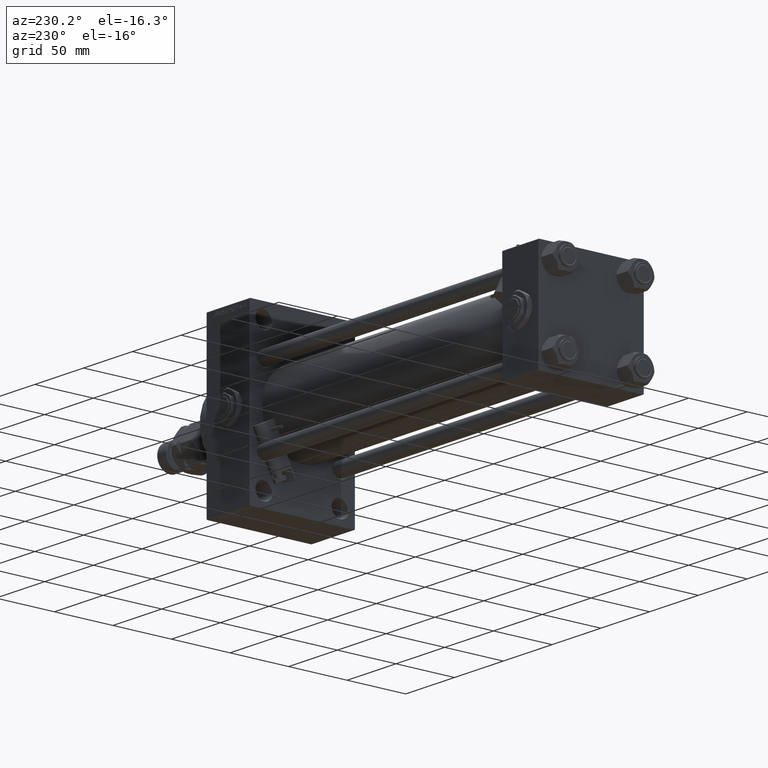
[diagram: clean part render]
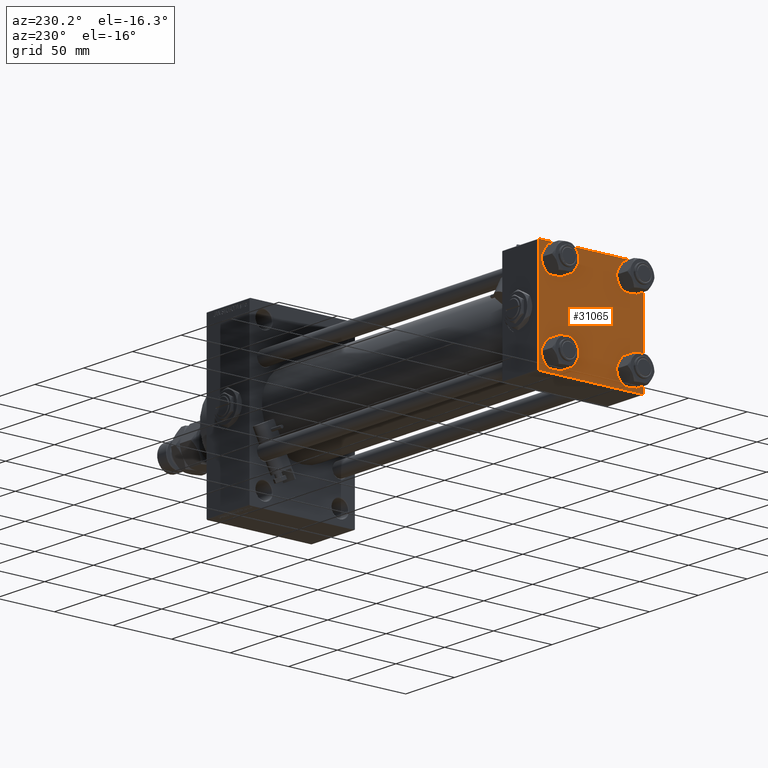
[diagram: same view with one face highlighted and labeled with its STEP entity id]
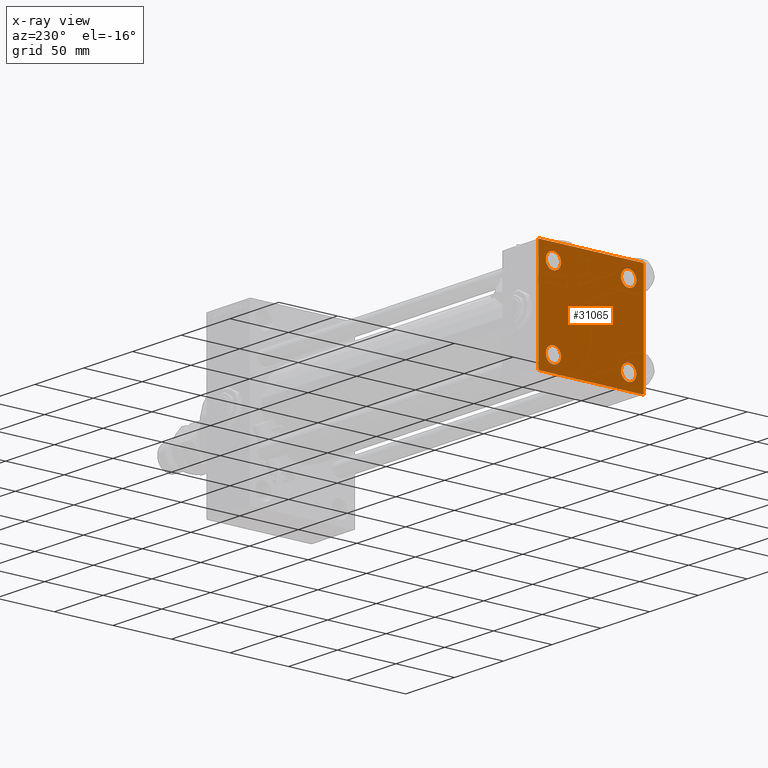
[diagram: x-ray of the same camera — body ghosted, the highlighted face saturated]
A machine part, auxiliary view. The second image highlights one B-rep face of the part: STEP entity #31065.
The next image is the same camera in x-ray: the body ghosted, the highlighted face saturated — about 0% of this face is hidden behind the body in this view.
In plain terms, the highlighted planar face has unit normal (-1, 0, 0).
Its self-contained STEP definition (entity closure, byte-faithful):
#115 = CARTESIAN_POINT ( 'NONE',  ( 0.000000000000000000, 0.000000000000000000, 0.000000000000000000 ) ) ;
#554 = AXIS2_PLACEMENT_3D ( 'NONE', #38928, #51031, #15501 ) ;
#830 = CARTESIAN_POINT ( 'NONE',  ( 0.000000000000000000, 44.49999999999998579, -44.99999999999998579 ) ) ;
#1161 = ORIENTED_EDGE ( 'NONE', *, *, #1194, .T. ) ;
#1194 = EDGE_CURVE ( 'NONE', #7182, #41284, #38180, .T. ) ;
#1914 = ORIENTED_EDGE ( 'NONE', *, *, #38972, .T. ) ;
#3299 = VERTEX_POINT ( 'NONE', #9766 ) ;
#4313 = FACE_BOUND ( 'NONE', #12012, .T. ) ;
#4573 = FACE_BOUND ( 'NONE', #21657, .T. ) ;
#4695 = LINE ( 'NONE', #48627, #20447 ) ;
#5331 = CARTESIAN_POINT ( 'NONE',  ( 0.000000000000000000, -32.14999999999997726, 32.15000000000001279 ) ) ;
#6154 = EDGE_CURVE ( 'NONE', #48262, #17721, #51214, .T. ) ;
#6717 = DIRECTION ( 'NONE',  ( 1.000000000000000000, -0.000000000000000000, 0.000000000000000000 ) ) ;
#7182 = VERTEX_POINT ( 'NONE', #8383 ) ;
#7385 = VERTEX_POINT ( 'NONE', #7803 ) ;
#7436 = ORIENTED_EDGE ( 'NONE', *, *, #34284, .T. ) ;
#7803 = CARTESIAN_POINT ( 'NONE',  ( 0.000000000000000000, -44.49999999999995737, -45.00000000000000000 ) ) ;
#7903 = AXIS2_PLACEMENT_3D ( 'NONE', #10208, #46758, #38864 ) ;
#8261 = FACE_BOUND ( 'NONE', #16561, .T. ) ;
#8383 = CARTESIAN_POINT ( 'NONE',  ( 0.000000000000000000, -32.14999999999997726, -38.64999999999999147 ) ) ;
#8418 = CARTESIAN_POINT ( 'NONE',  ( 0.000000000000000000, -32.14999999999997726, 25.64999999999999147 ) ) ;
#8422 = VERTEX_POINT ( 'NONE', #8418 ) ;
#8681 = DIRECTION ( 'NONE',  ( 1.000000000000000000, -0.000000000000000000, 0.000000000000000000 ) ) ;
#8770 = CARTESIAN_POINT ( 'NONE',  ( 0.000000000000000000, 32.14999999999999147, -25.65000000000002700 ) ) ;
#9031 = EDGE_CURVE ( 'NONE', #17721, #7385, #19036, .T. ) ;
#9045 = VECTOR ( 'NONE', #23247, 1000.000000000000000 ) ;
#9766 = CARTESIAN_POINT ( 'NONE',  ( 0.000000000000000000, 32.14999999999999147, 38.64999999999999147 ) ) ;
#10208 = CARTESIAN_POINT ( 'NONE',  ( 0.000000000000000000, -32.14999999999997726, -32.15000000000001279 ) ) ;
#10375 = CARTESIAN_POINT ( 'NONE',  ( 0.000000000000000000, 44.99999999999998579, -44.99999999999998579 ) ) ;
#10529 = CARTESIAN_POINT ( 'NONE',  ( 0.000000000000000000, 44.99999999999998579, 45.00000000000001421 ) ) ;
#10825 = CARTESIAN_POINT ( 'NONE',  ( 0.000000000000000000, 44.99999999999998579, -44.49999999999995737 ) ) ;
#11535 = CARTESIAN_POINT ( 'NONE',  ( 0.000000000000000000, 32.14999999999999147, -32.15000000000000568 ) ) ;
#11592 = ORIENTED_EDGE ( 'NONE', *, *, #38790, .T. ) ;
#11727 = CARTESIAN_POINT ( 'NONE',  ( 0.000000000000000000, -32.14999999999997726, 38.65000000000003411 ) ) ;
#11862 = ORIENTED_EDGE ( 'NONE', *, *, #51438, .T. ) ;
#12012 = EDGE_LOOP ( 'NONE', ( #37132, #33482 ) ) ;
#12050 = VECTOR ( 'NONE', #22375, 1000.000000000000000 ) ;
#12151 = VERTEX_POINT ( 'NONE', #51975 ) ;
#12287 = VERTEX_POINT ( 'NONE', #13010 ) ;
#12337 = CARTESIAN_POINT ( 'NONE',  ( 0.000000000000000000, -32.14999999999997726, -32.15000000000001279 ) ) ;
#12663 = DIRECTION ( 'NONE',  ( 0.000000000000000000, 0.000000000000000000, 1.000000000000000000 ) ) ;
#12986 = DIRECTION ( 'NONE',  ( -0.000000000000000000, 0.000000000000000000, 1.000000000000000000 ) ) ;
#13010 = CARTESIAN_POINT ( 'NONE',  ( 0.000000000000000000, 44.49999999999998579, 45.00000000000001421 ) ) ;
#13189 = CARTESIAN_POINT ( 'NONE',  ( 0.000000000000000000, -32.14999999999997726, 32.15000000000001279 ) ) ;
#13652 = AXIS2_PLACEMENT_3D ( 'NONE', #44722, #8681, #24736 ) ;
#13679 = ORIENTED_EDGE ( 'NONE', *, *, #6154, .T. ) ;
#13760 = DIRECTION ( 'NONE',  ( 0.000000000000000000, 0.000000000000000000, 1.000000000000000000 ) ) ;
#15501 = DIRECTION ( 'NONE',  ( 0.000000000000000000, 0.000000000000000000, 1.000000000000000000 ) ) ;
#16506 = VERTEX_POINT ( 'NONE', #40322 ) ;
#16561 = EDGE_LOOP ( 'NONE', ( #1914, #1161 ) ) ;
#17010 = CARTESIAN_POINT ( 'NONE',  ( 0.000000000000000000, 44.99999999999998579, 44.50000000000001421 ) ) ;
#17169 = DIRECTION ( 'NONE',  ( 1.000000000000000000, -0.000000000000000000, 0.000000000000000000 ) ) ;
#17721 = VERTEX_POINT ( 'NONE', #830 ) ;
#17926 = ORIENTED_EDGE ( 'NONE', *, *, #29043, .T. ) ;
#18592 = DIRECTION ( 'NONE',  ( 0.000000000000000000, -1.000000000000000000, -1.541976423090495387E-16 ) ) ;
#19036 = LINE ( 'NONE', #10375, #9045 ) ;
#19248 = VERTEX_POINT ( 'NONE', #17010 ) ;
#20029 = DIRECTION ( 'NONE',  ( 0.000000000000000000, 0.7071067811865474617, -0.7071067811865474617 ) ) ;
#20305 = CIRCLE ( 'NONE', #37974, 6.499999999999977796 ) ;
#20447 = VECTOR ( 'NONE', #24700, 1000.000000000000114 ) ;
#20629 = VECTOR ( 'NONE', #51934, 1000.000000000000114 ) ;
#21096 = AXIS2_PLACEMENT_3D ( 'NONE', #5331, #17169, #13760 ) ;
#21329 = VECTOR ( 'NONE', #20029, 1000.000000000000114 ) ;
#21657 = EDGE_LOOP ( 'NONE', ( #7436, #11862 ) ) ;
#21701 = VERTEX_POINT ( 'NONE', #37542 ) ;
#22375 = DIRECTION ( 'NONE',  ( 0.000000000000000000, 0.000000000000000000, -1.000000000000000000 ) ) ;
#22511 = EDGE_CURVE ( 'NONE', #51860, #47262, #24022, .T. ) ;
#22963 = EDGE_CURVE ( 'NONE', #3299, #16506, #36312, .T. ) ;
#23196 = EDGE_LOOP ( 'NONE', ( #49596, #13679, #39273, #35883, #47221, #40426, #30301, #39126 ) ) ;
#23247 = DIRECTION ( 'NONE',  ( 0.000000000000000000, -1.000000000000000000, -1.541976423090495633E-16 ) ) ;
#23640 = DIRECTION ( 'NONE',  ( 1.000000000000000000, -0.000000000000000000, 0.000000000000000000 ) ) ;
#24022 = LINE ( 'NONE', #36375, #51463 ) ;
#24044 = CARTESIAN_POINT ( 'NONE',  ( -0.000000000000000000, -44.75000000000029843, 44.74999999999967315 ) ) ;
#24700 = DIRECTION ( 'NONE',  ( 0.000000000000000000, -0.7071067811865474617, 0.7071067811865474617 ) ) ;
#24736 = DIRECTION ( 'NONE',  ( 0.000000000000000000, 0.000000000000000000, 1.000000000000000000 ) ) ;
#24974 = EDGE_CURVE ( 'NONE', #19248, #48262, #42894, .T. ) ;
#25092 = FACE_OUTER_BOUND ( 'NONE', #23196, .T. ) ;
#26449 = CARTESIAN_POINT ( 'NONE',  ( 0.000000000000000000, -45.00000000000000000, -44.49999999999995737 ) ) ;
#27224 = AXIS2_PLACEMENT_3D ( 'NONE', #13189, #28707, #12663 ) ;
#27268 = EDGE_LOOP ( 'NONE', ( #11592, #17926 ) ) ;
#27773 = CARTESIAN_POINT ( 'NONE',  ( 0.000000000000000000, 44.74999999999998579, -44.74999999999998579 ) ) ;
#28260 = VERTEX_POINT ( 'NONE', #11727 ) ;
#28383 = DIRECTION ( 'NONE',  ( 1.000000000000000000, -0.000000000000000000, 0.000000000000000000 ) ) ;
#28707 = DIRECTION ( 'NONE',  ( 1.000000000000000000, -0.000000000000000000, 0.000000000000000000 ) ) ;
#29043 = EDGE_CURVE ( 'NONE', #8422, #28260, #42124, .T. ) ;
#29592 = AXIS2_PLACEMENT_3D ( 'NONE', #115, #49022, #12986 ) ;
#30301 = ORIENTED_EDGE ( 'NONE', *, *, #31268, .F. ) ;
#30375 = CARTESIAN_POINT ( 'NONE',  ( 0.000000000000000000, -45.00000000000000711, 44.49999999999997158 ) ) ;
#31065 = ADVANCED_FACE ( 'NONE', ( #44300, #8261, #4573, #4313, #25092 ), #45071, .T. ) ;
#31268 = EDGE_CURVE ( 'NONE', #12287, #12151, #42539, .T. ) ;
#31436 = DIRECTION ( 'NONE',  ( 0.000000000000000000, 0.000000000000000000, 1.000000000000000000 ) ) ;
#31701 = CIRCLE ( 'NONE', #46832, 6.499999999999977796 ) ;
#32398 = CARTESIAN_POINT ( 'NONE',  ( 0.000000000000000000, 44.74999999999999289, 44.74999999999999289 ) ) ;
#32462 = LINE ( 'NONE', #24044, #20629 ) ;
#33482 = ORIENTED_EDGE ( 'NONE', *, *, #43739, .T. ) ;
#33883 = CARTESIAN_POINT ( 'NONE',  ( 0.000000000000000000, 44.99999999999998579, 45.00000000000001421 ) ) ;
#34284 = EDGE_CURVE ( 'NONE', #47617, #21701, #20305, .T. ) ;
#34345 = CARTESIAN_POINT ( 'NONE',  ( 0.000000000000000000, -32.14999999999997726, -25.65000000000003411 ) ) ;
#35647 = CIRCLE ( 'NONE', #49916, 6.499999999999977796 ) ;
#35883 = ORIENTED_EDGE ( 'NONE', *, *, #38107, .T. ) ;
#36312 = CIRCLE ( 'NONE', #13652, 6.499999999999977796 ) ;
#36375 = CARTESIAN_POINT ( 'NONE',  ( 0.000000000000000000, -45.00000000000000711, 45.00000000000000000 ) ) ;
#37132 = ORIENTED_EDGE ( 'NONE', *, *, #22963, .T. ) ;
#37330 = CIRCLE ( 'NONE', #27224, 6.500000000000019540 ) ;
#37542 = CARTESIAN_POINT ( 'NONE',  ( 0.000000000000000000, 32.14999999999999147, -38.64999999999998437 ) ) ;
#37681 = EDGE_CURVE ( 'NONE', #12287, #19248, #47924, .T. ) ;
#37974 = AXIS2_PLACEMENT_3D ( 'NONE', #46957, #6717, #31436 ) ;
#38107 = EDGE_CURVE ( 'NONE', #7385, #47262, #4695, .T. ) ;
#38180 = CIRCLE ( 'NONE', #7903, 6.499999999999977796 ) ;
#38790 = EDGE_CURVE ( 'NONE', #28260, #8422, #37330, .T. ) ;
#38864 = DIRECTION ( 'NONE',  ( 0.000000000000000000, 0.000000000000000000, 1.000000000000000000 ) ) ;
#38928 = CARTESIAN_POINT ( 'NONE',  ( 0.000000000000000000, 32.14999999999999147, 32.15000000000000568 ) ) ;
#38972 = EDGE_CURVE ( 'NONE', #41284, #7182, #35647, .T. ) ;
#39126 = ORIENTED_EDGE ( 'NONE', *, *, #37681, .T. ) ;
#39273 = ORIENTED_EDGE ( 'NONE', *, *, #9031, .T. ) ;
#39456 = DIRECTION ( 'NONE',  ( 0.000000000000000000, 0.000000000000000000, 1.000000000000000000 ) ) ;
#40322 = CARTESIAN_POINT ( 'NONE',  ( 0.000000000000000000, 32.14999999999999147, 25.65000000000002700 ) ) ;
#40426 = ORIENTED_EDGE ( 'NONE', *, *, #41400, .T. ) ;
#40513 = VECTOR ( 'NONE', #18592, 1000.000000000000000 ) ;
#41284 = VERTEX_POINT ( 'NONE', #34345 ) ;
#41400 = EDGE_CURVE ( 'NONE', #51860, #12151, #32462, .T. ) ;
#42124 = CIRCLE ( 'NONE', #21096, 6.500000000000019540 ) ;
#42539 = LINE ( 'NONE', #33883, #40513 ) ;
#42894 = LINE ( 'NONE', #10529, #12050 ) ;
#43739 = EDGE_CURVE ( 'NONE', #16506, #3299, #48432, .T. ) ;
#44017 = DIRECTION ( 'NONE',  ( 0.000000000000000000, 7.709882115452476934E-17, -1.000000000000000000 ) ) ;
#44300 = FACE_BOUND ( 'NONE', #27268, .T. ) ;
#44722 = CARTESIAN_POINT ( 'NONE',  ( 0.000000000000000000, 32.14999999999999147, 32.15000000000000568 ) ) ;
#45071 = PLANE ( 'NONE',  #29592 ) ;
#46758 = DIRECTION ( 'NONE',  ( 1.000000000000000000, -0.000000000000000000, 0.000000000000000000 ) ) ;
#46832 = AXIS2_PLACEMENT_3D ( 'NONE', #11535, #23640, #51013 ) ;
#46957 = CARTESIAN_POINT ( 'NONE',  ( 0.000000000000000000, 32.14999999999999147, -32.15000000000000568 ) ) ;
#47221 = ORIENTED_EDGE ( 'NONE', *, *, #22511, .F. ) ;
#47262 = VERTEX_POINT ( 'NONE', #26449 ) ;
#47617 = VERTEX_POINT ( 'NONE', #8770 ) ;
#47924 = LINE ( 'NONE', #32398, #21329 ) ;
#48032 = DIRECTION ( 'NONE',  ( -0.000000000000000000, -0.7071067811865474617, -0.7071067811865474617 ) ) ;
#48262 = VERTEX_POINT ( 'NONE', #10825 ) ;
#48432 = CIRCLE ( 'NONE', #554, 6.499999999999977796 ) ;
#48627 = CARTESIAN_POINT ( 'NONE',  ( 0.000000000000000000, -44.74999999999998579, -44.74999999999998579 ) ) ;
#49022 = DIRECTION ( 'NONE',  ( -1.000000000000000000, 0.000000000000000000, -0.000000000000000000 ) ) ;
#49596 = ORIENTED_EDGE ( 'NONE', *, *, #24974, .T. ) ;
#49916 = AXIS2_PLACEMENT_3D ( 'NONE', #12337, #28383, #39456 ) ;
#50127 = VECTOR ( 'NONE', #48032, 1000.000000000000114 ) ;
#51013 = DIRECTION ( 'NONE',  ( 0.000000000000000000, 0.000000000000000000, 1.000000000000000000 ) ) ;
#51031 = DIRECTION ( 'NONE',  ( 1.000000000000000000, -0.000000000000000000, 0.000000000000000000 ) ) ;
#51214 = LINE ( 'NONE', #27773, #50127 ) ;
#51438 = EDGE_CURVE ( 'NONE', #21701, #47617, #31701, .T. ) ;
#51463 = VECTOR ( 'NONE', #44017, 1000.000000000000000 ) ;
#51860 = VERTEX_POINT ( 'NONE', #30375 ) ;
#51934 = DIRECTION ( 'NONE',  ( -0.000000000000000000, 0.7071067811865425767, 0.7071067811865524577 ) ) ;
#51975 = CARTESIAN_POINT ( 'NONE',  ( 0.000000000000000000, -44.49999999999995737, 45.00000000000000000 ) ) ;